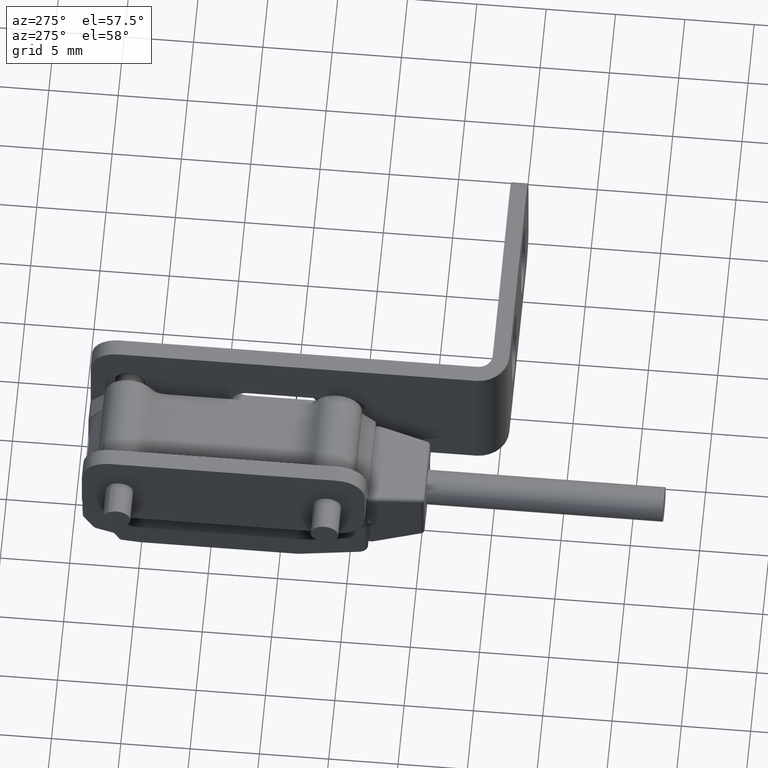
[diagram: clean part render]
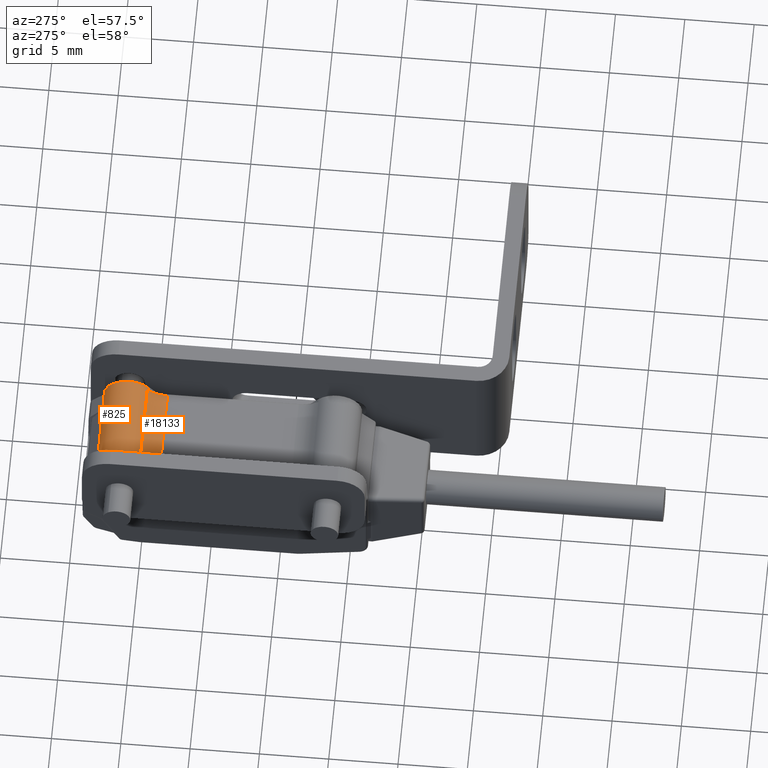
[diagram: same view with one multi-face feature highlighted, each face labeled with its STEP entity id]
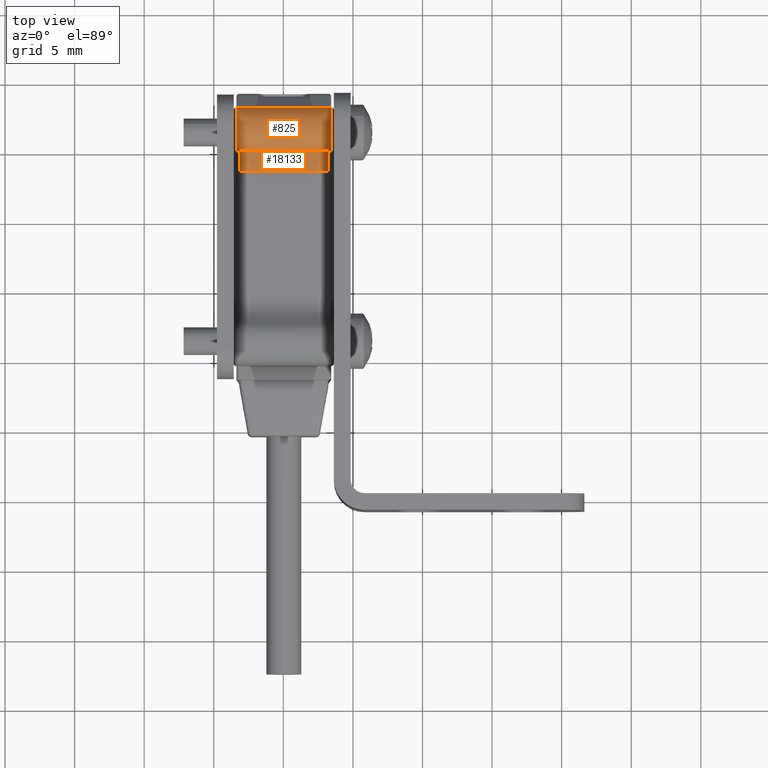
[diagram: same view with one multi-face feature highlighted, each face labeled with its STEP entity id]
A machine part, auxiliary view. The highlighted faces form ONE feature: a constant-radius fillet chain: 2 tangent blend faces with common blend radius 1.9 mm. The faces share edges in the B-rep.
A second angle (top view) of the same feature is appended — it is thin or edge-on in the first view.
Their STEP definitions:
[1] entity #825 (Cylinder):
#134 = CARTESIAN_POINT ( 'NONE',  ( -3.500000000000003109, 11.44467307430286418, 1.999092722392972643 ) ) ;
#140 = CARTESIAN_POINT ( 'NONE',  ( 2.000000000180100823, 13.24467307415726580, 1.999092723017667605 ) ) ;
#424 = CARTESIAN_POINT ( 'NONE',  ( -3.200000000000001510, 10.13196088345296531, 3.230671669708175209 ) ) ;
#503 = CARTESIAN_POINT ( 'NONE',  ( 3.330665762496112681, 13.24346757761575155, 1.932337898826943068 ) ) ;
#630 = ORIENTED_EDGE ( 'NONE', *, *, #7523, .F. ) ;
#662 = EDGE_CURVE ( 'NONE', #10020, #13549, #15197, .T. ) ;
#726 = CARTESIAN_POINT ( 'NONE',  ( 3.230524218933848779, 10.08717689271036733, 3.181594659154067362 ) ) ;
#825 = ADVANCED_FACE ( 'NONE', ( #8917 ), #2990, .T. ) ;
#864 = CARTESIAN_POINT ( 'NONE',  ( -3.201713414315944473, 10.12941149028691612, 3.227950094816578464 ) ) ;
#1609 = DIRECTION ( 'NONE',  ( 0.000000000000000000, -1.156482317411401953E-14, 1.000000000000000000 ) ) ;
#1893 = CARTESIAN_POINT ( 'NONE',  ( 3.399999999999997691, 13.22994073365907752, 1.767080154606135656 ) ) ;
#2085 = DIRECTION ( 'NONE',  ( 1.000000000000000000, 1.045014142154773872E-16, 2.161850253356914880E-32 ) ) ;
#2310 = CARTESIAN_POINT ( 'NONE',  ( -3.400000000000000355, 11.44467307430286418, 3.799092722247369824 ) ) ;
#2505 = CARTESIAN_POINT ( 'NONE',  ( 3.245472509991849996, 10.06579307681286473, 3.156110419718471949 ) ) ;
#2702 = DIRECTION ( 'NONE',  ( 1.000000000000000000, 1.045014142154773872E-16, 1.208540376846840071E-30 ) ) ;
#2990 = CYLINDRICAL_SURFACE ( 'NONE', #15224, 1.799999999854424937 ) ;
#3002 = ORIENTED_EDGE ( 'NONE', *, *, #19217, .T. ) ;
#3142 = VERTEX_POINT ( 'NONE', #140 ) ;
#3178 = CARTESIAN_POINT ( 'NONE',  ( 3.400000000000000355, 13.22528813673876513, 1.735634947972873654 ) ) ;
#3325 = CARTESIAN_POINT ( 'NONE',  ( -2.000000000123250299, 13.24467307415726580, 1.999092723017667605 ) ) ;
#3527 = CARTESIAN_POINT ( 'NONE',  ( 3.400000000000000355, 10.06579307680801527, 3.156110419728567873 ) ) ;
#3550 = CARTESIAN_POINT ( 'NONE',  ( 3.229630899846644088, 13.24467307415737061, 1.998862799065391993 ) ) ;
#3650 = CARTESIAN_POINT ( 'NONE',  ( 3.378914043521137778, 13.23905662789955429, 1.854148069214067274 ) ) ;
#3712 = LINE ( 'NONE', #15767, #8624 ) ;
#3790 = CARTESIAN_POINT ( 'NONE',  ( 3.215201693429599494, 10.10932302298986407, 3.206542485396771003 ) ) ;
#3976 = ORIENTED_EDGE ( 'NONE', *, *, #17182, .T. ) ;
#4293 = CARTESIAN_POINT ( 'NONE',  ( 3.400000000000000355, 10.06579307680021529, 3.156110419735167039 ) ) ;
#4298 = ORIENTED_EDGE ( 'NONE', *, *, #16713, .T. ) ;
#4351 = EDGE_CURVE ( 'NONE', #18037, #18918, #13029, .T. ) ;
#4626 = VECTOR ( 'NONE', #9547, 1000.000000000000000 ) ;
#5030 = CARTESIAN_POINT ( 'NONE',  ( -3.231343886961599132, 10.08600434230146448, 3.180197267943670081 ) ) ;
#5050 = CARTESIAN_POINT ( 'NONE',  ( 3.258069183979188210, 13.24473867397983007, 1.989756018150030226 ) ) ;
#5083 = CARTESIAN_POINT ( 'NONE',  ( 3.400000000000000355, 13.22528813673876513, 1.735634947972873654 ) ) ;
#5486 = CARTESIAN_POINT ( 'NONE',  ( -3.400000000000000355, 13.22528813673876513, 1.735634947972873654 ) ) ;
#5947 = EDGE_LOOP ( 'NONE', ( #4298, #7204, #3976, #17330, #6261, #3002, #9709, #630, #15057, #13385, #6240, #6266, #18570 ) ) ;
#6016 = LINE ( 'NONE', #14895, #19135 ) ;
#6240 = ORIENTED_EDGE ( 'NONE', *, *, #6735, .F. ) ;
#6261 = ORIENTED_EDGE ( 'NONE', *, *, #8606, .T. ) ;
#6266 = ORIENTED_EDGE ( 'NONE', *, *, #6273, .F. ) ;
#6273 = EDGE_CURVE ( 'NONE', #6374, #3142, #3712, .T. ) ;
#6306 = DIRECTION ( 'NONE',  ( 1.000000000000000000, 1.045014142154773872E-16, 2.161850253356914880E-32 ) ) ;
#6374 = VERTEX_POINT ( 'NONE', #3325 ) ;
#6568 = CARTESIAN_POINT ( 'NONE',  ( -3.500000000000003109, 13.24467307415726580, 1.999092723017667605 ) ) ;
#6735 = EDGE_CURVE ( 'NONE', #3142, #18918, #12285, .T. ) ;
#6780 = LINE ( 'NONE', #3527, #4626 ) ;
#6812 = CARTESIAN_POINT ( 'NONE',  ( 3.367244421273224209, 13.24091195277847888, 1.879695514683813684 ) ) ;
#7204 = ORIENTED_EDGE ( 'NONE', *, *, #16377, .T. ) ;
#7241 = VERTEX_POINT ( 'NONE', #16084 ) ;
#7523 = EDGE_CURVE ( 'NONE', #8178, #13549, #6780, .T. ) ;
#7677 = DIRECTION ( 'NONE',  ( 1.000000000000000000, 1.045014142154773872E-16, 2.161850253356914880E-32 ) ) ;
#7770 = VECTOR ( 'NONE', #9713, 1000.000000000000000 ) ;
#7906 = CARTESIAN_POINT ( 'NONE',  ( 3.395782808704225442, 13.23353294406789438, 1.797098523843386308 ) ) ;
#8069 = CARTESIAN_POINT ( 'NONE',  ( -3.245472510181354853, 10.06579307681581348, 3.156110419722066407 ) ) ;
#8094 = VECTOR ( 'NONE', #7677, 1000.000000000000000 ) ;
#8178 = VERTEX_POINT ( 'NONE', #4293 ) ;
#8189 = CARTESIAN_POINT ( 'NONE',  ( 3.298937686606846054, 13.24432934956504582, 1.962786733726890720 ) ) ;
#8200 = VERTEX_POINT ( 'NONE', #424 ) ;
#8377 = B_SPLINE_CURVE_WITH_KNOTS ( 'NONE', 3,
 ( #13187, #12974, #19403, #16148, #17430, #5486 ),
 .UNSPECIFIED., .F., .F.,
 ( 4, 2, 4 ),
 ( 0.000000000000000000, 0.5000000000000000000, 1.000000000000000000 ),
 .UNSPECIFIED. ) ;
#8606 = EDGE_CURVE ( 'NONE', #15254, #8200, #15608, .T. ) ;
#8624 = VECTOR ( 'NONE', #16970, 1000.000000000000000 ) ;
#8917 = FACE_OUTER_BOUND ( 'NONE', #5947, .T. ) ;
#8953 = DIRECTION ( 'NONE',  ( 0.000000000000000000, -1.349229370313302252E-14, 1.000000000000000000 ) ) ;
#9253 = EDGE_CURVE ( 'NONE', #8178, #18037, #19092, .T. ) ;
#9547 = DIRECTION ( 'NONE',  ( -1.000000000000000000, -1.045014142154773872E-16, -2.161850253356914880E-32 ) ) ;
#9648 = CARTESIAN_POINT ( 'NONE',  ( -3.200000000000001510, 10.13196088345296531, 3.230671669708175209 ) ) ;
#9709 = ORIENTED_EDGE ( 'NONE', *, *, #662, .T. ) ;
#9713 = DIRECTION ( 'NONE',  ( 1.000000000000000000, 1.045014142154773872E-16, 2.161850253356914880E-32 ) ) ;
#10020 = VERTEX_POINT ( 'NONE', #18759 ) ;
#10303 = CARTESIAN_POINT ( 'NONE',  ( -3.400000000000000355, 13.22528813673876513, 1.735634947972873654 ) ) ;
#10322 = CIRCLE ( 'NONE', #12202, 1.799999999854424937 ) ;
#10605 = DIRECTION ( 'NONE',  ( 0.000000000000000000, 1.349229370313302252E-14, -1.000000000000000000 ) ) ;
#10986 = CARTESIAN_POINT ( 'NONE',  ( -3.600000000000005862, 10.06579307681581348, 3.156110419722066407 ) ) ;
#11860 = CIRCLE ( 'NONE', #16605, 1.799999999854424937 ) ;
#11926 = CARTESIAN_POINT ( 'NONE',  ( -3.245472510181354853, 10.06579307681581348, 3.156110419722066407 ) ) ;
#12019 = CARTESIAN_POINT ( 'NONE',  ( -3.400000000000000355, 11.44467307430286418, 1.999092722392972643 ) ) ;
#12202 = AXIS2_PLACEMENT_3D ( 'NONE', #18010, #12268, #1609 ) ;
#12226 = CARTESIAN_POINT ( 'NONE',  ( -3.500000000000003109, 10.13196088345296531, 3.230671669708175209 ) ) ;
#12268 = DIRECTION ( 'NONE',  ( 1.000000000000000000, 1.045014142154773872E-16, 1.208540376846840071E-30 ) ) ;
#12285 = LINE ( 'NONE', #6568, #7770 ) ;
#12314 = LINE ( 'NONE', #12226, #8094 ) ;
#12974 = CARTESIAN_POINT ( 'NONE',  ( -3.259312281986946669, 13.24467307415744521, 1.998641885488091408 ) ) ;
#13029 = B_SPLINE_CURVE_WITH_KNOTS ( 'NONE', 3,
 ( #3178, #1893, #7906, #3650, #6812, #18479, #503, #15430, #8189, #5050, #3550, #14305 ),
 .UNSPECIFIED., .F., .F.,
 ( 4, 2, 2, 2, 2, 4 ),
 ( 0.000000000000000000, 0.2500000000000002220, 0.5000000000000004441, 0.6250000000000001110, 0.7499999999999985567, 1.000000000000000000 ),
 .UNSPECIFIED. ) ;
#13187 = CARTESIAN_POINT ( 'NONE',  ( -3.200000000000001510, 13.24467307415726580, 1.999092723017667605 ) ) ;
#13385 = ORIENTED_EDGE ( 'NONE', *, *, #4351, .T. ) ;
#13549 = VERTEX_POINT ( 'NONE', #16744 ) ;
#13906 = VERTEX_POINT ( 'NONE', #10303 ) ;
#14046 = AXIS2_PLACEMENT_3D ( 'NONE', #19513, #18114, #10605 ) ;
#14305 = CARTESIAN_POINT ( 'NONE',  ( 3.200000000000001510, 13.24467307415726580, 1.999092723017667605 ) ) ;
#14457 = VERTEX_POINT ( 'NONE', #2310 ) ;
#14895 = CARTESIAN_POINT ( 'NONE',  ( -3.500000000000003109, 13.24467307415726580, 1.999092723017667605 ) ) ;
#15057 = ORIENTED_EDGE ( 'NONE', *, *, #9253, .T. ) ;
#15197 = B_SPLINE_CURVE_WITH_KNOTS ( 'NONE', 3,
 ( #18897, #3790, #726, #2505 ),
 .UNSPECIFIED., .F., .F.,
 ( 4, 4 ),
 ( -6.155876248442150383E-06, 0.0001030778727427893897 ),
 .UNSPECIFIED. ) ;
#15224 = AXIS2_PLACEMENT_3D ( 'NONE', #134, #2702, #16531 ) ;
#15254 = VERTEX_POINT ( 'NONE', #11926 ) ;
#15430 = CARTESIAN_POINT ( 'NONE',  ( 3.309306145145076261, 13.24414194955588364, 1.954041211723390292 ) ) ;
#15524 = VERTEX_POINT ( 'NONE', #19514 ) ;
#15608 = B_SPLINE_CURVE_WITH_KNOTS ( 'NONE', 3,
 ( #8069, #5030, #17158, #17358, #864, #15694, #9648 ),
 .UNSPECIFIED., .F., .F.,
 ( 4, 3, 4 ),
 ( 4.392517151260125179E-16, 0.0001034147259088791996, 0.0001095706021573979963 ),
 .UNSPECIFIED. ) ;
#15694 = CARTESIAN_POINT ( 'NONE',  ( -3.200856691520898245, 10.13068512630466422, 3.229311868970470734 ) ) ;
#15767 = CARTESIAN_POINT ( 'NONE',  ( -3.500000000000003109, 13.24467307415726580, 1.999092723017667605 ) ) ;
#15797 = CARTESIAN_POINT ( 'NONE',  ( 3.200000000000001510, 13.24467307415726580, 1.999092723017667605 ) ) ;
#16084 = CARTESIAN_POINT ( 'NONE',  ( -3.400000000000000355, 10.06579307681581348, 3.156110419722066407 ) ) ;
#16148 = CARTESIAN_POINT ( 'NONE',  ( -3.383045063545470299, 13.23970573923283922, 1.856018287365829966 ) ) ;
#16319 = VECTOR ( 'NONE', #2085, 1000.000000000000000 ) ;
#16377 = EDGE_CURVE ( 'NONE', #13906, #14457, #11860, .T. ) ;
#16531 = DIRECTION ( 'NONE',  ( 0.000000000000000000, 1.156482317411401953E-14, -1.000000000000000000 ) ) ;
#16605 = AXIS2_PLACEMENT_3D ( 'NONE', #12019, #18146, #8953 ) ;
#16713 = EDGE_CURVE ( 'NONE', #15524, #13906, #8377, .T. ) ;
#16744 = CARTESIAN_POINT ( 'NONE',  ( 3.245472509991849996, 10.06579307681286473, 3.156110419718471949 ) ) ;
#16970 = DIRECTION ( 'NONE',  ( 1.000000000000000000, 1.045014142154773872E-16, 2.161850253356914880E-32 ) ) ;
#17158 = CARTESIAN_POINT ( 'NONE',  ( -3.216961365152551267, 10.10677897721356722, 3.203675872131772628 ) ) ;
#17182 = EDGE_CURVE ( 'NONE', #14457, #7241, #10322, .T. ) ;
#17308 = EDGE_CURVE ( 'NONE', #7241, #15254, #18586, .T. ) ;
#17330 = ORIENTED_EDGE ( 'NONE', *, *, #17308, .T. ) ;
#17358 = CARTESIAN_POINT ( 'NONE',  ( -3.202570072000997303, 10.12813995442846426, 3.226586324718276444 ) ) ;
#17430 = CARTESIAN_POINT ( 'NONE',  ( -3.400000000000007461, 13.23462328389138776, 1.798727804756593107 ) ) ;
#18010 = CARTESIAN_POINT ( 'NONE',  ( -3.400000000000000355, 11.44467307430286418, 1.999092722392972643 ) ) ;
#18037 = VERTEX_POINT ( 'NONE', #5083 ) ;
#18114 = DIRECTION ( 'NONE',  ( -1.000000000000000000, -1.045014142154773872E-16, -1.409963772987980171E-30 ) ) ;
#18146 = DIRECTION ( 'NONE',  ( 1.000000000000000000, 1.045014142154773872E-16, 1.409963772987980171E-30 ) ) ;
#18479 = CARTESIAN_POINT ( 'NONE',  ( 3.340468346039492609, 13.24299250135655903, 1.920164347728138265 ) ) ;
#18570 = ORIENTED_EDGE ( 'NONE', *, *, #19197, .F. ) ;
#18586 = LINE ( 'NONE', #10986, #16319 ) ;
#18759 = CARTESIAN_POINT ( 'NONE',  ( 3.200000000000001510, 10.13196088345296531, 3.230671669708175209 ) ) ;
#18897 = CARTESIAN_POINT ( 'NONE',  ( 3.200000000000001510, 10.13196088345296531, 3.230671669708175209 ) ) ;
#18918 = VERTEX_POINT ( 'NONE', #15797 ) ;
#19092 = CIRCLE ( 'NONE', #14046, 1.799999999854424937 ) ;
#19135 = VECTOR ( 'NONE', #6306, 1000.000000000000000 ) ;
#19197 = EDGE_CURVE ( 'NONE', #15524, #6374, #6016, .T. ) ;
#19217 = EDGE_CURVE ( 'NONE', #8200, #10020, #12314, .T. ) ;
#19403 = CARTESIAN_POINT ( 'NONE',  ( -3.315225317727327425, 13.24493224050435458, 1.958111060256534808 ) ) ;
#19513 = CARTESIAN_POINT ( 'NONE',  ( 3.400000000000000355, 11.44467307430286418, 1.999092722392972643 ) ) ;
#19514 = CARTESIAN_POINT ( 'NONE',  ( -3.200000000000001510, 13.24467307415726580, 1.999092723017667605 ) ) ;
[2] entity #18133 (Cylinder):
#424 = CARTESIAN_POINT ( 'NONE',  ( -3.200000000000001510, 10.13196088345296531, 3.230671669708175209 ) ) ;
#818 = CARTESIAN_POINT ( 'NONE',  ( -3.500000000000003109, 8.673391782390613258, 4.599092722391173282 ) ) ;
#956 = ORIENTED_EDGE ( 'NONE', *, *, #8236, .F. ) ;
#1827 = CARTESIAN_POINT ( 'NONE',  ( -3.500000000000003109, 8.673391782390661220, 2.599092722391275867 ) ) ;
#2436 = ORIENTED_EDGE ( 'NONE', *, *, #10039, .T. ) ;
#3633 = CARTESIAN_POINT ( 'NONE',  ( -3.200000000000001510, 8.673391782390661220, 2.599092722391275867 ) ) ;
#3634 = AXIS2_PLACEMENT_3D ( 'NONE', #818, #11289, #17328 ) ;
#3675 = ORIENTED_EDGE ( 'NONE', *, *, #15572, .T. ) ;
#4985 = DIRECTION ( 'NONE',  ( -1.000000000000000000, -1.045014142154773872E-16, -2.161850253356914880E-32 ) ) ;
#5287 = CYLINDRICAL_SURFACE ( 'NONE', #3634, 2.000000000000000000 ) ;
#6808 = AXIS2_PLACEMENT_3D ( 'NONE', #8978, #13227, #11843 ) ;
#7495 = EDGE_LOOP ( 'NONE', ( #956, #2436, #17307, #3675 ) ) ;
#7677 = DIRECTION ( 'NONE',  ( 1.000000000000000000, 1.045014142154773872E-16, 2.161850253356914880E-32 ) ) ;
#8094 = VECTOR ( 'NONE', #7677, 1000.000000000000000 ) ;
#8200 = VERTEX_POINT ( 'NONE', #424 ) ;
#8236 = EDGE_CURVE ( 'NONE', #12360, #10400, #15633, .T. ) ;
#8978 = CARTESIAN_POINT ( 'NONE',  ( 3.200000000000001510, 8.673391782390613258, 4.599092722391173282 ) ) ;
#9220 = DIRECTION ( 'NONE',  ( 0.000000000000000000, -1.040834085586084257E-14, 1.000000000000000000 ) ) ;
#10020 = VERTEX_POINT ( 'NONE', #18759 ) ;
#10039 = EDGE_CURVE ( 'NONE', #12360, #10020, #15337, .T. ) ;
#10400 = VERTEX_POINT ( 'NONE', #3633 ) ;
#11289 = DIRECTION ( 'NONE',  ( 1.000000000000000000, 1.045014142154773872E-16, 1.087686339074189991E-30 ) ) ;
#11346 = CARTESIAN_POINT ( 'NONE',  ( 3.200000000000001510, 8.673391782390661220, 2.599092722391275867 ) ) ;
#11478 = VECTOR ( 'NONE', #4985, 1000.000000000000000 ) ;
#11843 = DIRECTION ( 'NONE',  ( 0.000000000000000000, 1.040834085586084257E-14, -1.000000000000000000 ) ) ;
#12226 = CARTESIAN_POINT ( 'NONE',  ( -3.500000000000003109, 10.13196088345296531, 3.230671669708175209 ) ) ;
#12314 = LINE ( 'NONE', #12226, #8094 ) ;
#12360 = VERTEX_POINT ( 'NONE', #11346 ) ;
#13077 = CIRCLE ( 'NONE', #16566, 2.000000000000000000 ) ;
#13227 = DIRECTION ( 'NONE',  ( 1.000000000000000000, 1.045014142154773872E-16, 1.087686339074189991E-30 ) ) ;
#15337 = CIRCLE ( 'NONE', #6808, 2.000000000000000000 ) ;
#15572 = EDGE_CURVE ( 'NONE', #8200, #10400, #13077, .T. ) ;
#15633 = LINE ( 'NONE', #1827, #11478 ) ;
#16539 = CARTESIAN_POINT ( 'NONE',  ( -3.200000000000001510, 8.673391782390613258, 4.599092722391173282 ) ) ;
#16566 = AXIS2_PLACEMENT_3D ( 'NONE', #16539, #16737, #9220 ) ;
#16737 = DIRECTION ( 'NONE',  ( -1.000000000000000000, -1.045014142154773872E-16, -1.087686339074189991E-30 ) ) ;
#17307 = ORIENTED_EDGE ( 'NONE', *, *, #19217, .F. ) ;
#17328 = DIRECTION ( 'NONE',  ( 0.000000000000000000, 1.040834085586084257E-14, -1.000000000000000000 ) ) ;
#18133 = ADVANCED_FACE ( 'NONE', ( #18793 ), #5287, .F. ) ;
#18759 = CARTESIAN_POINT ( 'NONE',  ( 3.200000000000001510, 10.13196088345296531, 3.230671669708175209 ) ) ;
#18793 = FACE_OUTER_BOUND ( 'NONE', #7495, .T. ) ;
#19217 = EDGE_CURVE ( 'NONE', #8200, #10020, #12314, .T. ) ;